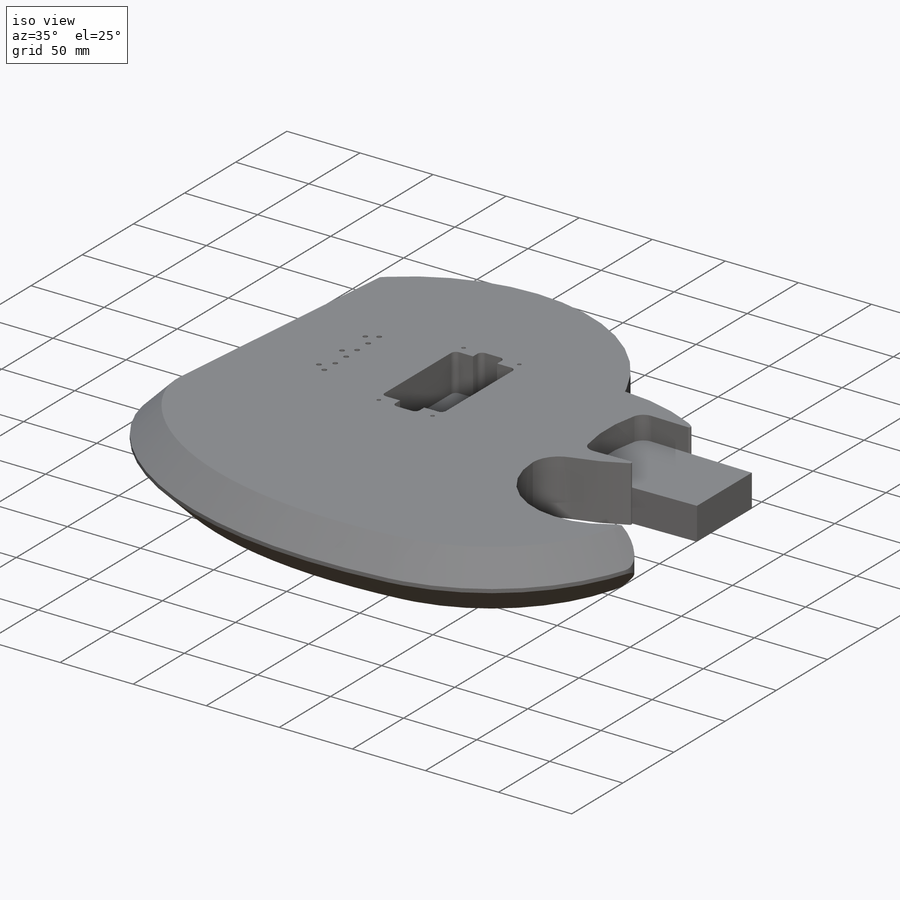
[diagram: iso view]
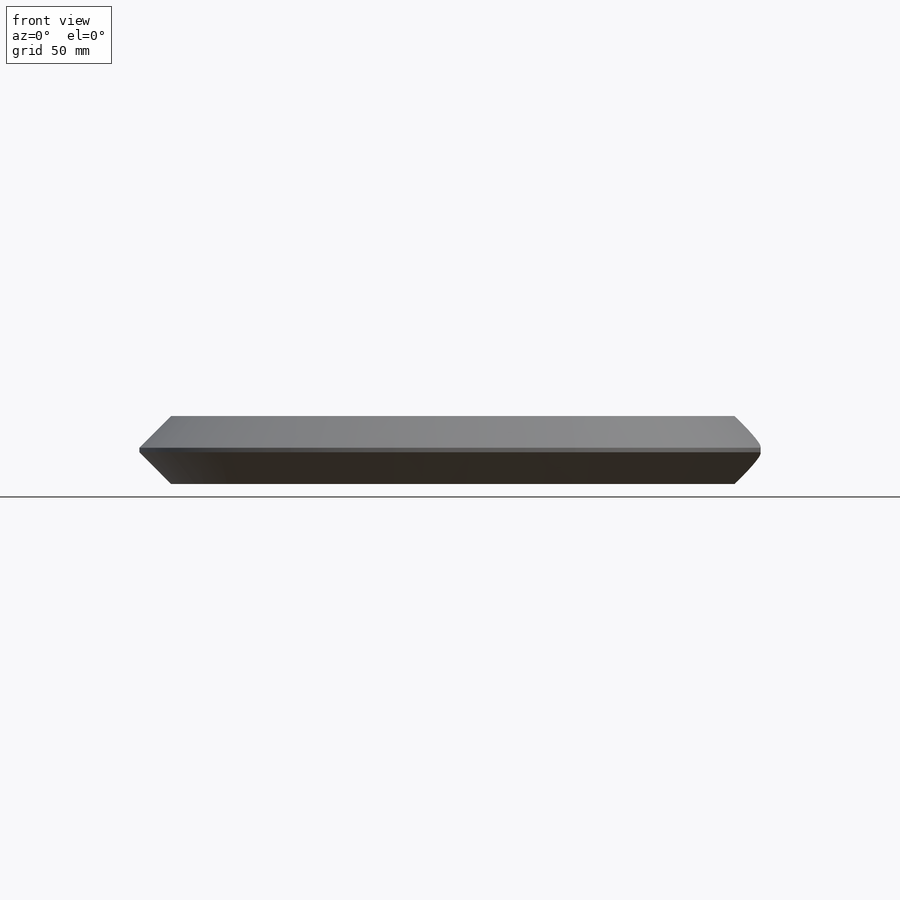
[diagram: front view]
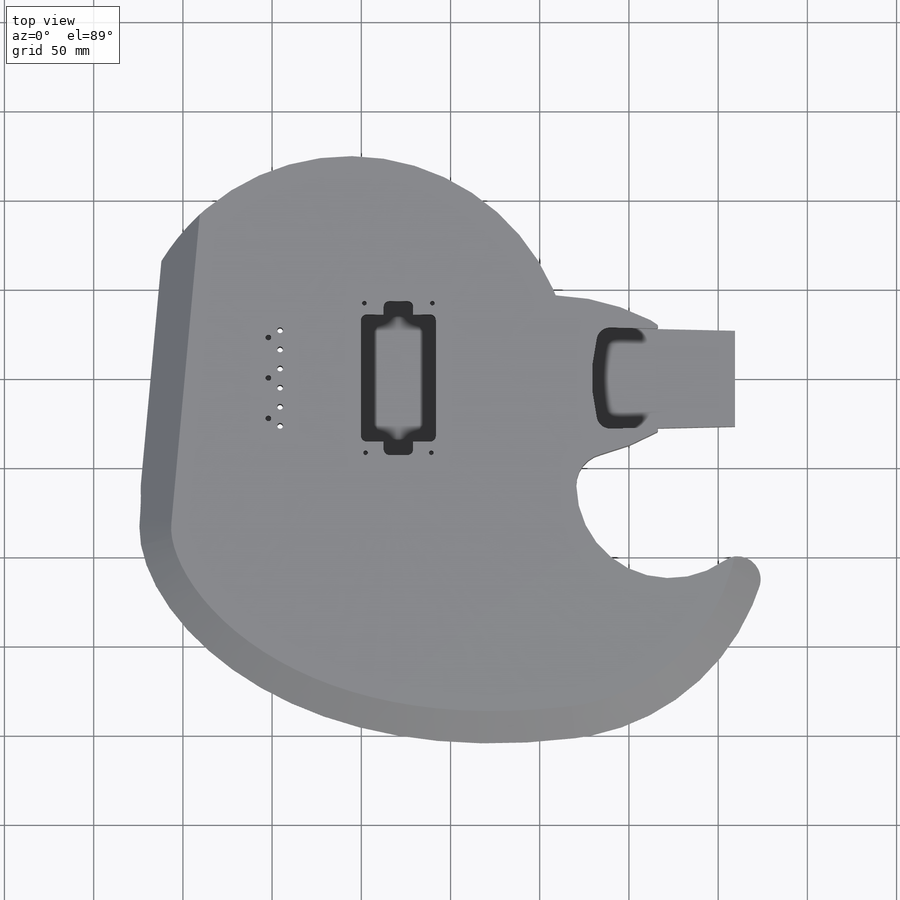
[diagram: top view]
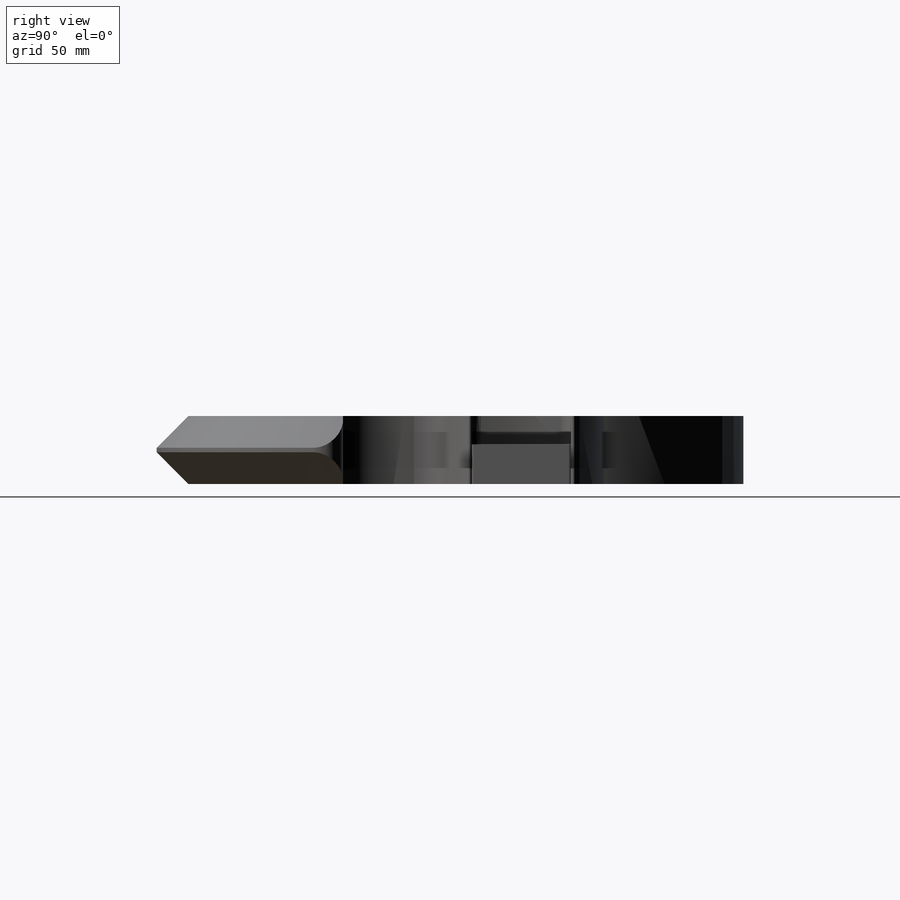
[diagram: right view]
SOLIDWORKS PART (.sldprt)
format: sldprt  version: not decoded by parser v0  size: 654,336 bytes
history: native  units: mm
features: sketch x9, cut_extrude x8, chamfer x2, material x1, move_body x1, extrude x1, fillet x1 + 1 further entry (+18 scaffold rows collapsed; 5 parser-record rows omitted)
feature tree (47):
  scaffold x18  (default folders/planes/origin — collapsed)
  material  "Material <not specified>"
  sketch  "Pickup Pocket Sketch"  dims[c1.D5=2.54mm c1.D9=3.175mm c1.D1=41.91mm c1.D2=86.36mm c1.D3=7.493mm c1.D4=12.7mm c1.D6=19.05mm c1.D7=41.91mm c1.D8=18.669mm c2.D9=8.5852mm c2.D10=~6.45447mm c2.D11=~6.45447mm c3.D9=71.374mm c3.D10=10.16mm c3.D3=13.6525mm]
  sketch  "Neck Pocket Sketch"  dims[c1.D3=3.175mm c1.D7=1.5494mm c1.D10=2.8702mm c1.D12=5.7404mm c1.D6=3.175mm c1.D9=3.175mm c1.D11=3.175mm c2.D6=15.24mm c2.D7=15.24mm c2.D8=8.89mm c2.D1=6.35mm c2.D2=8.5852mm c2.D4=2.286mm c2.D5=9.525mm c3.D6=23.876mm c3.D8=76.2mm c3.D9=27.94mm c3.D11=2.8702mm c3.D1=8.255mm c3.D2=6.35mm c3.D3=28.194mm c3.D4=~65.422923mm c4.D4=~1.277897deg c4.D5=79.756mm c4.D6=76.2mm c4.D7=13.0302mm c4.D8=19.05mm c4.D10=50.8mm c5.D5=79.756mm c5.D1=~4.499991mm c5.D2=~28.499994mm c5.D3=~28.499994mm c6.D5=~300.582635mm c7.D5=~1.277897deg]
  sketch  "String Holes Sketch"  dims[D3=3.175mm D6=3.175mm D7=3.175mm D1=174.752mm D2=5.3594mm D4=10.7188mm D5=10.7188mm]
  sketch  "Bridge Holes Sketch"  dims[D2=3.175mm D3=3.175mm D1=6.5786mm D4=22.6822mm]
  "III Heart"
  parser-record x5  (decoder bookkeeping rows leaked as tree rows — omitted from the tree; the rows remain in map.json)
  move_body  "Body-Move/Copy2"
  sketch  "Sketch2"  dims[D1=0.0mm]
  extrude  "Boss-Extrude1"  [1 undecoded]
  cut_extrude  "Pickup Pocket"  Depth=25.4mm
  cut_extrude  "String Holes"  [1 undecoded]
  cut_extrude  "Bridge Holes"  Depth=19.05mm
  cut_extrude  "Neck Pocket"  Depth=15.875mm
  sketch  "Sketch3"  dims[c1.D2=1.27mm c1.D5=~6.936772mm c2.D2=1.27mm c2.D1=6.35mm c3.D2=44.45mm c3.D3=~3.333468mm c3.D1=0.0mm c3.D4=0.0mm c4.D1=0.0mm]
  cut_extrude  "Cut-Extrude1"  [1 undecoded]
  sketch  "Sketch4"  dims[D2=1.27mm D5=44.45mm D1=0.0mm D3=0.0mm D4=0.0mm]
  cut_extrude  "Cut-Extrude2"  [1 undecoded]
  sketch  "Sketch6"  dims[D1=50.8mm]
  cut_extrude  "Cut-Extrude4"  [1 undecoded]
  fillet  "Fillet1"  Radius=139.7mm
  sketch  "Sketch7"
  cut_extrude  "Cut-Extrude5"  [1 undecoded]
  chamfer  "Chamfer1"  Distance=17.78mm Angle=45deg
  chamfer  "Chamfer2"  Distance=17.78mm Angle=45deg
decode coverage: 14 of 22 modeling features carry decoded parameters; 1 rows unclassified (native names shown)
note: ~ marks probable driven/reference dimensions
note: 6 parameter values undecoded
summary: no parameter record found for 6 features
note: suppression state not decoded; provenance and decode notes live in map.json
